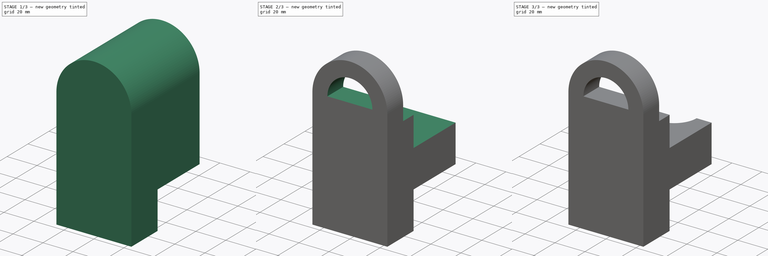
[diagram: build sequence overview — one tinted view per stage of 3, left to right]
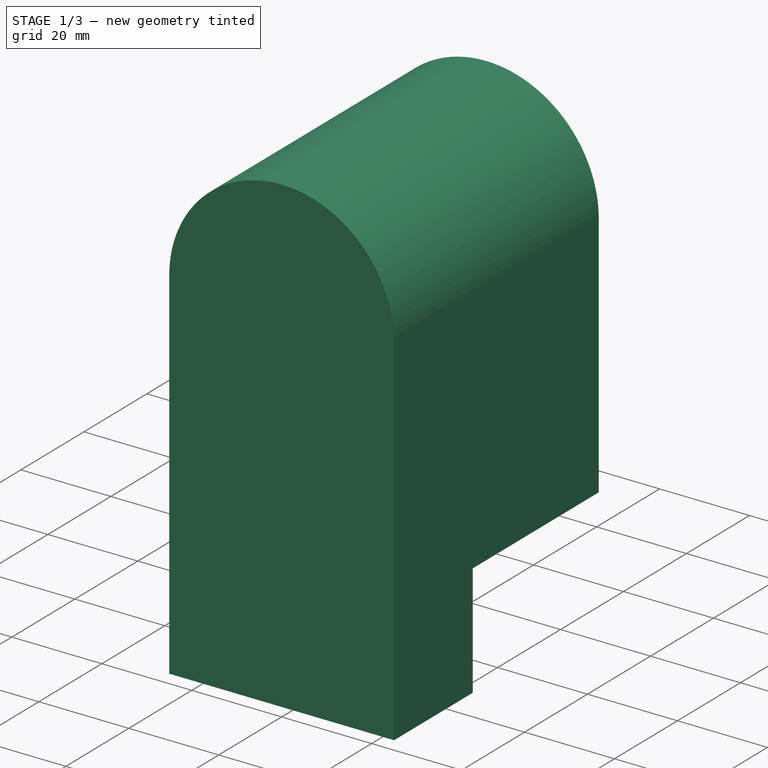
[diagram: stage 1 of 3 — iso view after this stage's code; geometry added in this stage tinted green]
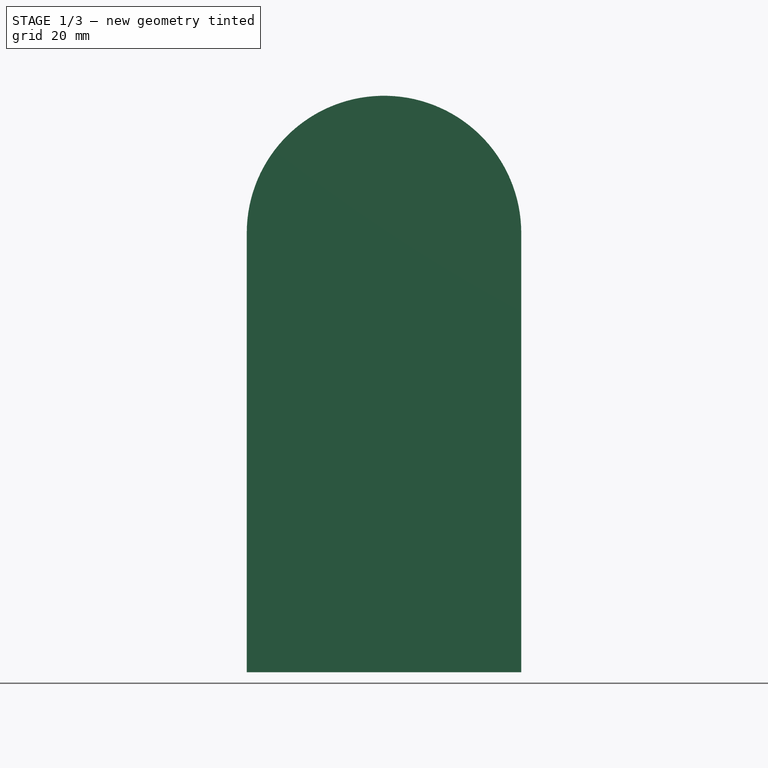
[diagram: stage 1 of 3 — front view after this stage's code; geometry added in this stage tinted green]
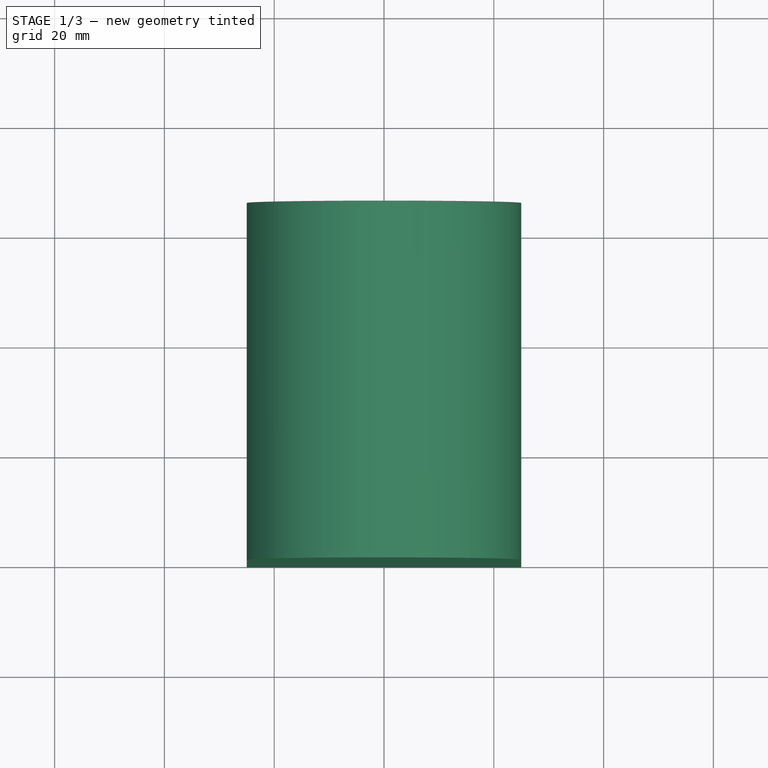
[diagram: stage 1 of 3 — top view after this stage's code; geometry added in this stage tinted green]
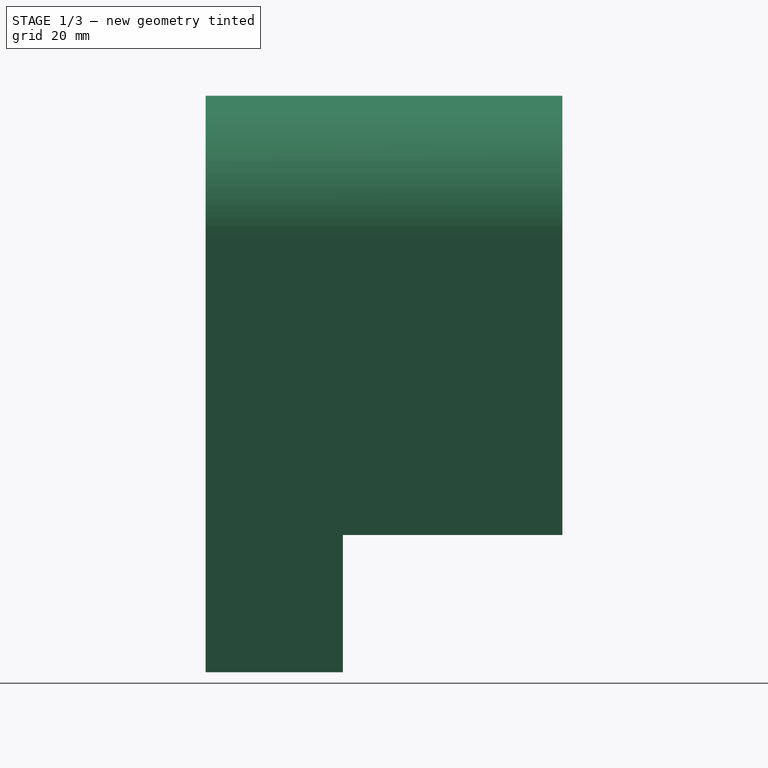
[diagram: stage 1 of 3 — right view after this stage's code; geometry added in this stage tinted green]
FCSTD DOCUMENT  (FreeCAD 0.18R4 (GitTag))
Label: BasicPart3
License: All rights reserved
LicenseURL: http://en.wikipedia.org/wiki/All_rights_reserved
objects: Sketcher::SketchObject×7, PartDesign::Pocket×5, PartDesign::Pad×2, PartDesign::Body×1
note: 22 computed .brp shape members not serialized (recipe doc carries the construction recipe); baked Part::Feature solids carry a one-line shape summary decoded from their .brp

FEATURE [Sketcher::SketchObject] Sketch
  MapMode = 5
  Placement = pos=(0,0,0) rot=(1,0,0;1.5708rad)
  Support = -> [XZ_Plane]
  sketch-geometry (4):
    g0: LineSegment StartX=-25 StartY=80 StartZ=0 EndX=-25 EndY=0 EndZ=0
    g1: LineSegment StartX=-25 StartY=0 StartZ=0 EndX=25 EndY=0 EndZ=0
    g2: LineSegment StartX=25 StartY=0 StartZ=0 EndX=25 EndY=80 EndZ=0
    g3: ArcOfCircle CenterX=9e-16 CenterY=80 CenterZ=0 NormalX=0 NormalY=0 NormalZ=1 AngleXU=0 Radius=25 StartAngle=0 EndAngle=3.14159
  constraints (12):
    c: Coincident(g0,g1)
    c: Coincident(g1,g2)
    c: Symmetric(g1,g0,g-2)
    c: Symmetric(g2,g0,g-2)
    c: Vertical(g2)
    c: PointOnObject(g1,g-1)
    c: Distance(g1) = 50
    c: Distance(g2) = 80
    c: Horizontal(g3,g3)
    c: Horizontal(g3,g3)
    c: Radius(g3) = 25
    c: Coincident(g3,g0)
FEATURE [PartDesign::Pad] Pad
  Length = 65
  Length2 = 100
  Placement = pos=(0,0,0) rot=(1,0,0;1.5708rad)
  Profile = -> Sketch
  Reversed = true
  Type = 0
FEATURE [Sketcher::SketchObject] Sketch001
  MapMode = 5
  Placement = pos=(25,0,0) rot=(0.707107,0,0.707107;3.14159rad)
  Support = -> [Pad]
  sketch-geometry (4):
    g0: LineSegment StartX=25 StartY=-25 StartZ=0 EndX=0 EndY=-25 EndZ=0
    g1: LineSegment StartX=0 StartY=-25 StartZ=0 EndX=0 EndY=-65 EndZ=0
    g2: LineSegment StartX=0 StartY=-65 StartZ=0 EndX=25 EndY=-65 EndZ=0
    g3: LineSegment StartX=25 StartY=-65 StartZ=0 EndX=25 EndY=-25 EndZ=0
  constraints (12):
    c: Coincident(g0,g1)
    c: Coincident(g1,g2)
    c: Coincident(g2,g3)
    c: Coincident(g3,g0)
    c: Horizontal(g0)
    c: Horizontal(g2)
    c: Vertical(g1)
    c: Vertical(g3)
    c: Distance(g1) = 40
    c: Distance(g0) = 25
    c: PointOnObject(g1,g-2)
    c: DistanceY(g-1,g1) = -65
FEATURE [PartDesign::Pocket] Pocket
  BaseFeature = -> Pad
  Length = 5
  Length2 = 100
  Placement = pos=(0,0,0) rot=(1,0,0;1.5708rad)
  Profile = -> Sketch001
  Type = 1
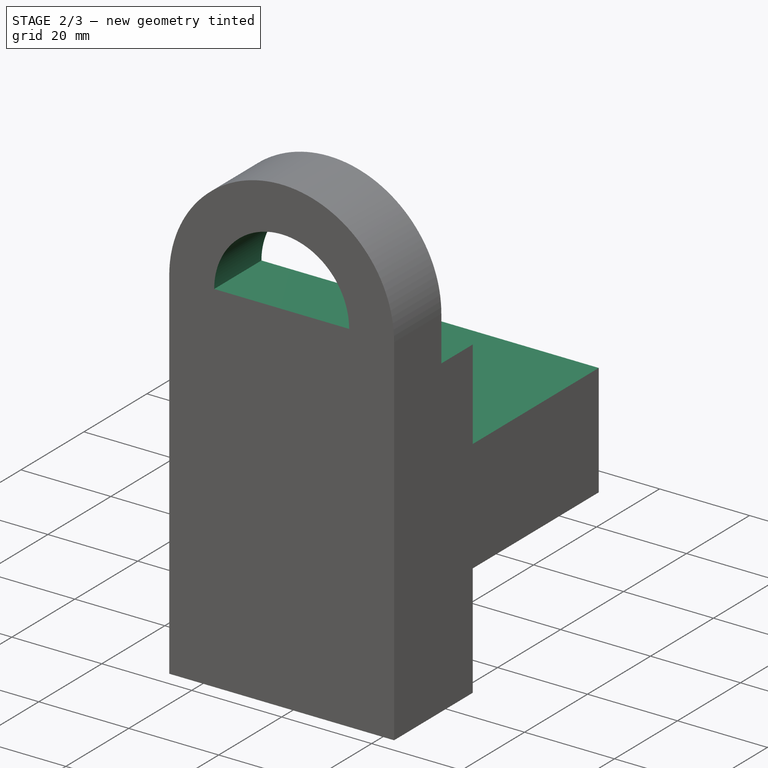
[diagram: stage 2 of 3 — iso view after this stage's code; geometry added in this stage tinted green]
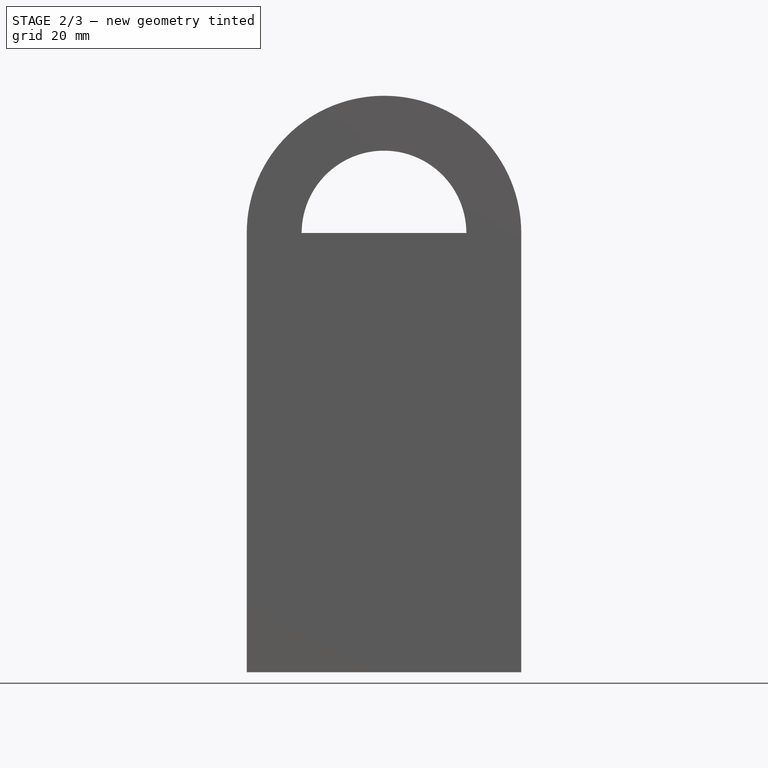
[diagram: stage 2 of 3 — front view after this stage's code; geometry added in this stage tinted green]
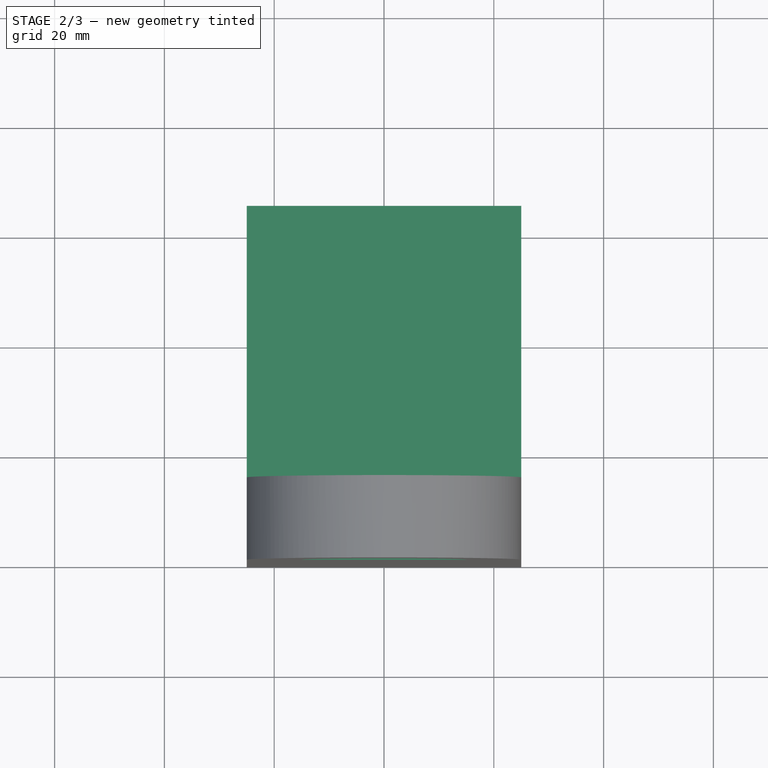
[diagram: stage 2 of 3 — top view after this stage's code; geometry added in this stage tinted green]
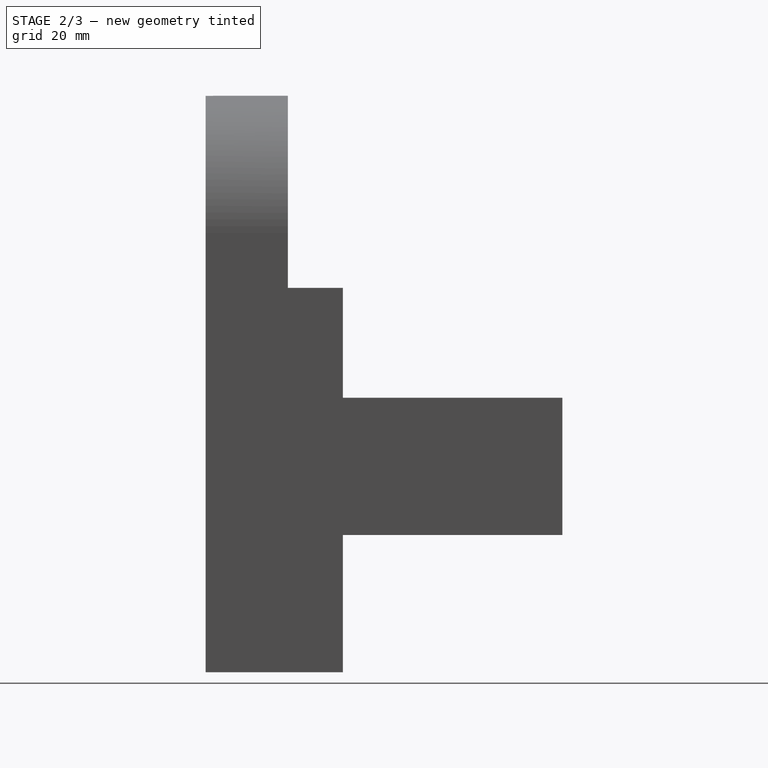
[diagram: stage 2 of 3 — right view after this stage's code; geometry added in this stage tinted green]
FEATURE [Sketcher::SketchObject] Sketch002
  MapMode = 5
  Placement = pos=(25,0,0) rot=(0.707107,0,0.707107;3.14159rad)
  Support = -> [Pocket]
  sketch-geometry (4):
    g0: LineSegment StartX=70 StartY=-25 StartZ=0 EndX=50 EndY=-25 EndZ=0
    g1: LineSegment StartX=50 StartY=-25 StartZ=0 EndX=50 EndY=-65 EndZ=0
    g2: LineSegment StartX=50 StartY=-65 StartZ=0 EndX=70 EndY=-65 EndZ=0
    g3: LineSegment StartX=70 StartY=-65 StartZ=0 EndX=70 EndY=-25 EndZ=0
  constraints (12):
    c: Coincident(g0,g1)
    c: Coincident(g1,g2)
    c: Coincident(g2,g3)
    c: Coincident(g3,g0)
    c: Horizontal(g0)
    c: Horizontal(g2)
    c: Vertical(g1)
    c: Vertical(g3)
    c: Distance(g1) = 40
    c: DistanceX(g2,g2) = 20
    c: DistanceY(g-1,g2) = -65
    c: DistanceX(g-2,g0) = 50
FEATURE [PartDesign::Pocket] Pocket001
  BaseFeature = -> Pocket
  Length = 5
  Length2 = 100
  Placement = pos=(0,0,0) rot=(1,0,0;1.5708rad)
  Profile = -> Sketch002
  Type = 1
FEATURE [Sketcher::SketchObject] Sketch003
  MapMode = 5
  Placement = pos=(0,0,0) rot=(0.57735,0.57735,0.57735;2.0944rad)
  Support = -> [YZ_Plane]
  sketch-geometry (4):
    g0: LineSegment StartX=15 StartY=105 StartZ=0 EndX=65 EndY=105 EndZ=0
    g1: LineSegment StartX=65 StartY=105 StartZ=0 EndX=65 EndY=70 EndZ=0
    g2: LineSegment StartX=65 StartY=70 StartZ=0 EndX=15 EndY=70 EndZ=0
    g3: LineSegment StartX=15 StartY=70 StartZ=0 EndX=15 EndY=105 EndZ=0
  constraints (12):
    c: Coincident(g0,g1)
    c: Coincident(g1,g2)
    c: Coincident(g2,g3)
    c: Coincident(g3,g0)
    c: Horizontal(g0)
    c: Horizontal(g2)
    c: Vertical(g1)
    c: Vertical(g3)
    c: Distance(g2) = 50
    c: Distance(g1) = 35
    c: DistanceY(g-1,g0) = 105
    c: DistanceX(g-2,g0) = 65
FEATURE [PartDesign::Pocket] Pocket002
  BaseFeature = -> Pocket001
  Length = 5
  Length2 = 100
  Midplane = true
  Placement = pos=(0,0,0) rot=(1,0,0;1.5708rad)
  Profile = -> Sketch003
  Type = 1
FEATURE [Sketcher::SketchObject] Sketch004
  MapMode = 5
  Placement = pos=(3.3e-15,15,-3.3e-15) rot=(-1,0,0;1.5708rad)
  Support = -> [Pocket002]
  sketch-geometry (2):
    g0: ArcOfCircle CenterX=0 CenterY=-80 CenterZ=0 NormalX=0 NormalY=0 NormalZ=1 AngleXU=0 Radius=15 StartAngle=3.14159 EndAngle=6.28319
    g1: LineSegment StartX=15 StartY=-80 StartZ=0 EndX=-15 EndY=-80 EndZ=0
  constraints (7):
    c: Horizontal(g0,g0)
    c: Horizontal(g0,g0)
    c: Radius(g0) = 15
    c: DistanceY(g-1,g0) = -80
    c: PointOnObject(g0,g-2)
    c: Coincident(g1,g0)
    c: Coincident(g1,g0)
FEATURE [PartDesign::Pocket] Pocket003
  BaseFeature = -> Pocket002
  Length = 5
  Length2 = 100
  Placement = pos=(0,0,0) rot=(1,0,0;1.5708rad)
  Profile = -> Sketch004
  Type = 1
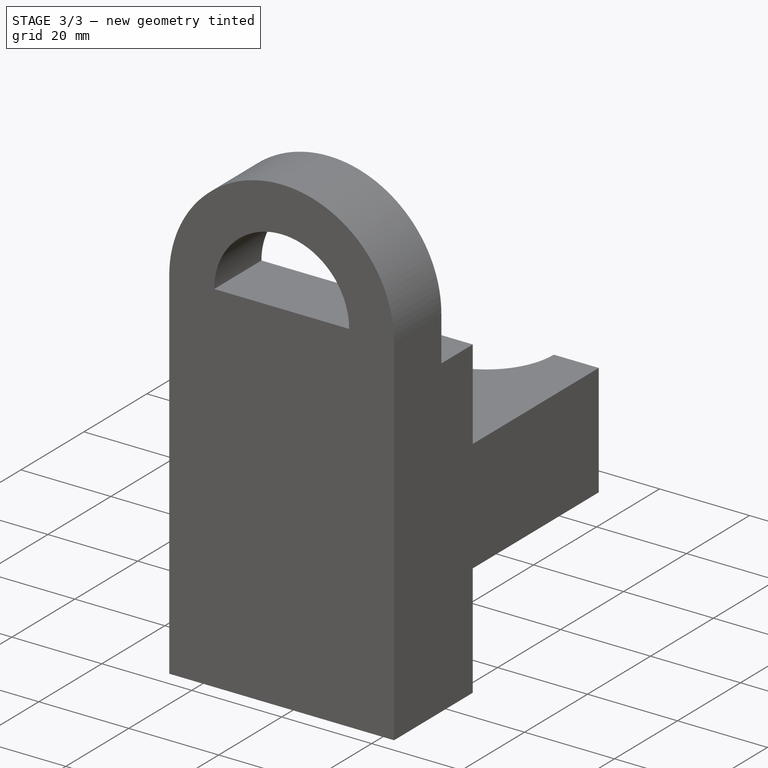
[diagram: stage 3 of 3 — iso view after this stage's code; geometry added in this stage tinted green]
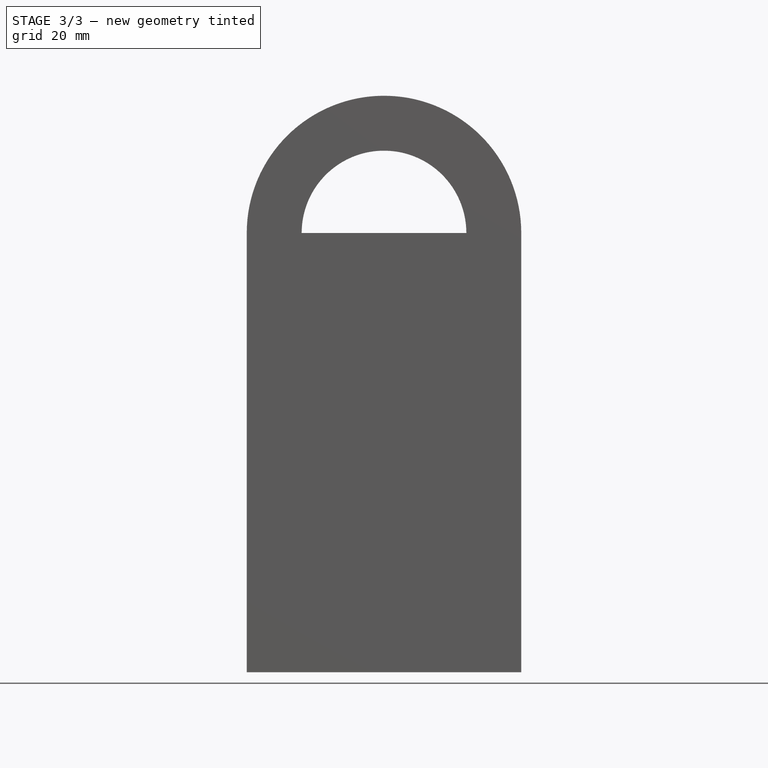
[diagram: stage 3 of 3 — front view after this stage's code; geometry added in this stage tinted green]
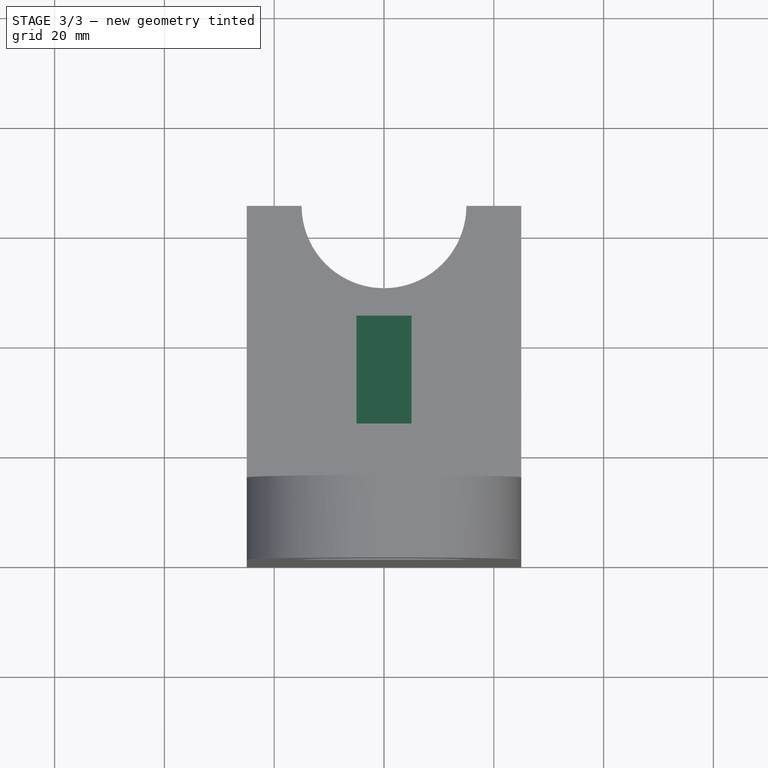
[diagram: stage 3 of 3 — top view after this stage's code; geometry added in this stage tinted green]
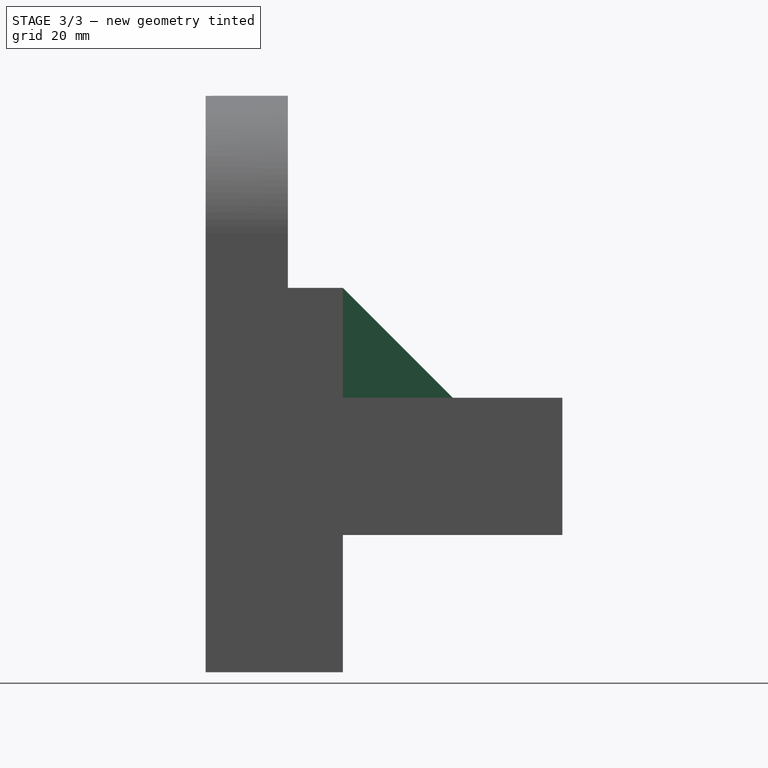
[diagram: stage 3 of 3 — right view after this stage's code; geometry added in this stage tinted green]
FEATURE [Sketcher::SketchObject] Sketch005
  MapMode = 5
  Placement = pos=(0,0,0) rot=(0.57735,0.57735,0.57735;2.0944rad)
  Support = -> [YZ_Plane]
  sketch-geometry (3):
    g0: LineSegment StartX=25 StartY=70 StartZ=0 EndX=25 EndY=50 EndZ=0
    g1: LineSegment StartX=25 StartY=50 StartZ=0 EndX=45 EndY=50 EndZ=0
    g2: LineSegment StartX=45 StartY=50 StartZ=0 EndX=25 EndY=70 EndZ=0
  constraints (9):
    c: Coincident(g0,g1)
    c: Coincident(g1,g2)
    c: Coincident(g2,g0)
    c: DistanceX(g1,g1) = 20
    c: Distance(g0) = 20
    c: Angle(g1,g0) = 1.5708
    c: Parallel(g1,g-1)
    c: DistanceY(g-1,g0) = 50
    c: DistanceX(g-2,g1) = 45
FEATURE [PartDesign::Pad] Pad001
  BaseFeature = -> Pocket003
  Length = 10
  Length2 = 100
  Midplane = true
  Placement = pos=(0,0,0) rot=(1,0,0;1.5708rad)
  Profile = -> Sketch005
  Type = 0
FEATURE [Sketcher::SketchObject] Sketch006
  MapMode = 5
  Placement = pos=(1.11e-14,-1.11e-14,50) rot=(0,0,1;3.14159rad)
  Support = -> [Pad001]
  sketch-geometry (2):
    g0: ArcOfCircle CenterX=0 CenterY=-65 CenterZ=0 NormalX=0 NormalY=0 NormalZ=1 AngleXU=0 Radius=15 StartAngle=0 EndAngle=3.14159
    g1: LineSegment StartX=-15 StartY=-65 StartZ=0 EndX=15 EndY=-65 EndZ=0
  constraints (7):
    c: Horizontal(g0,g0)
    c: Horizontal(g0,g0)
    c: Radius(g0) = 15
    c: PointOnObject(g0,g-2)
    c: DistanceY(g-1,g0) = -65
    c: Coincident(g1,g0)
    c: Coincident(g1,g0)
FEATURE [PartDesign::Pocket] Pocket004
  BaseFeature = -> Pad001
  Length = 5
  Length2 = 100
  Placement = pos=(0,0,0) rot=(1,0,0;1.5708rad)
  Profile = -> Sketch006
  Type = 1
FEATURE [PartDesign::Body] Body
  Group = -> [Sketch,Pad,Sketch001,Pocket,Sketch002,Pocket001,Sketch003,Pocket002,Sketch004,Pocket003,Sketch005,Pad001,Sketch006,Pocket004]
  Origin = -> Origin
  Tip = -> Pocket004
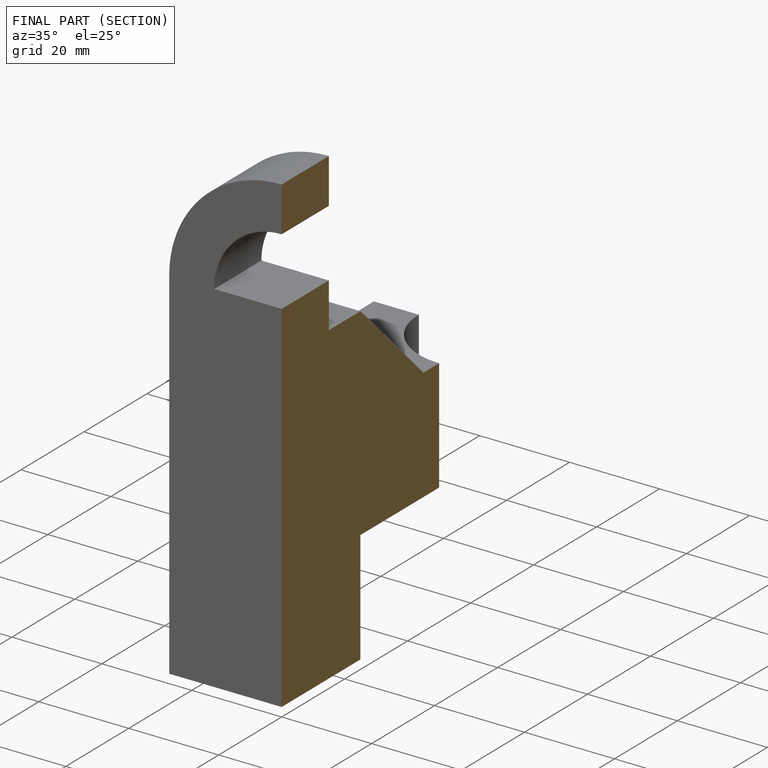
[diagram: finished part — half-section view (interior)]
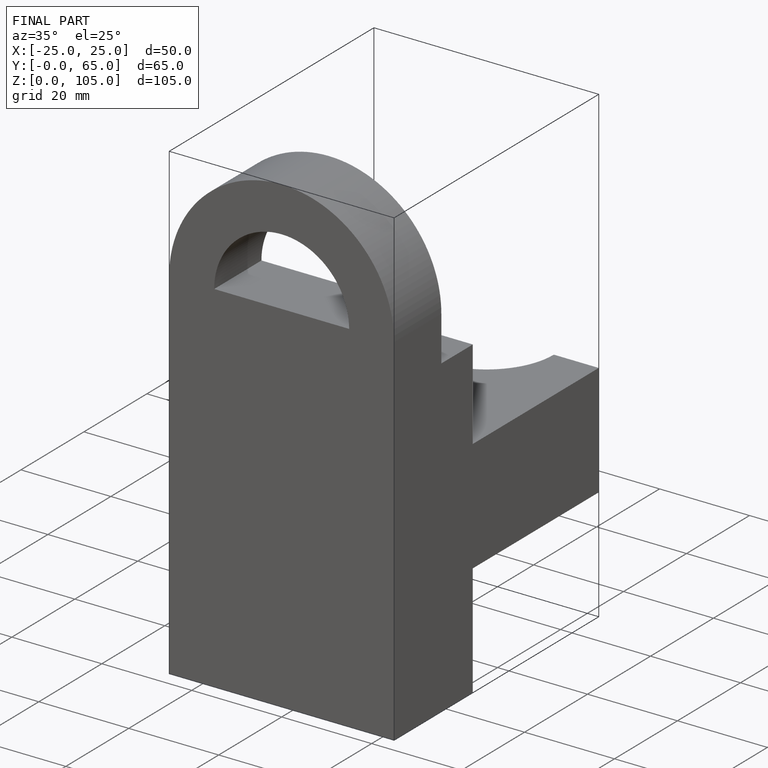
[diagram: finished part — iso view with bounding-box wireframe]
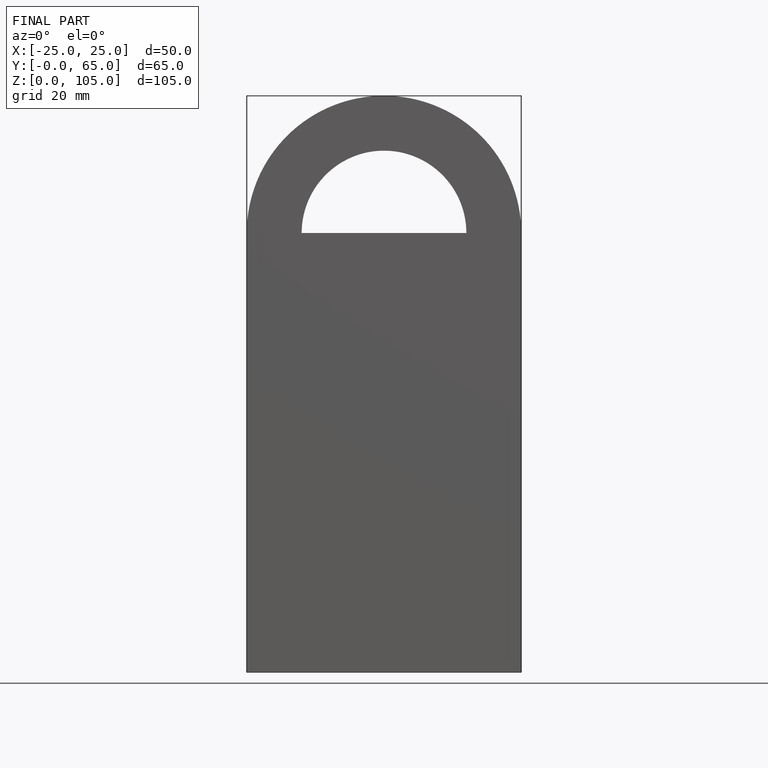
[diagram: finished part — front view with bounding-box wireframe]
